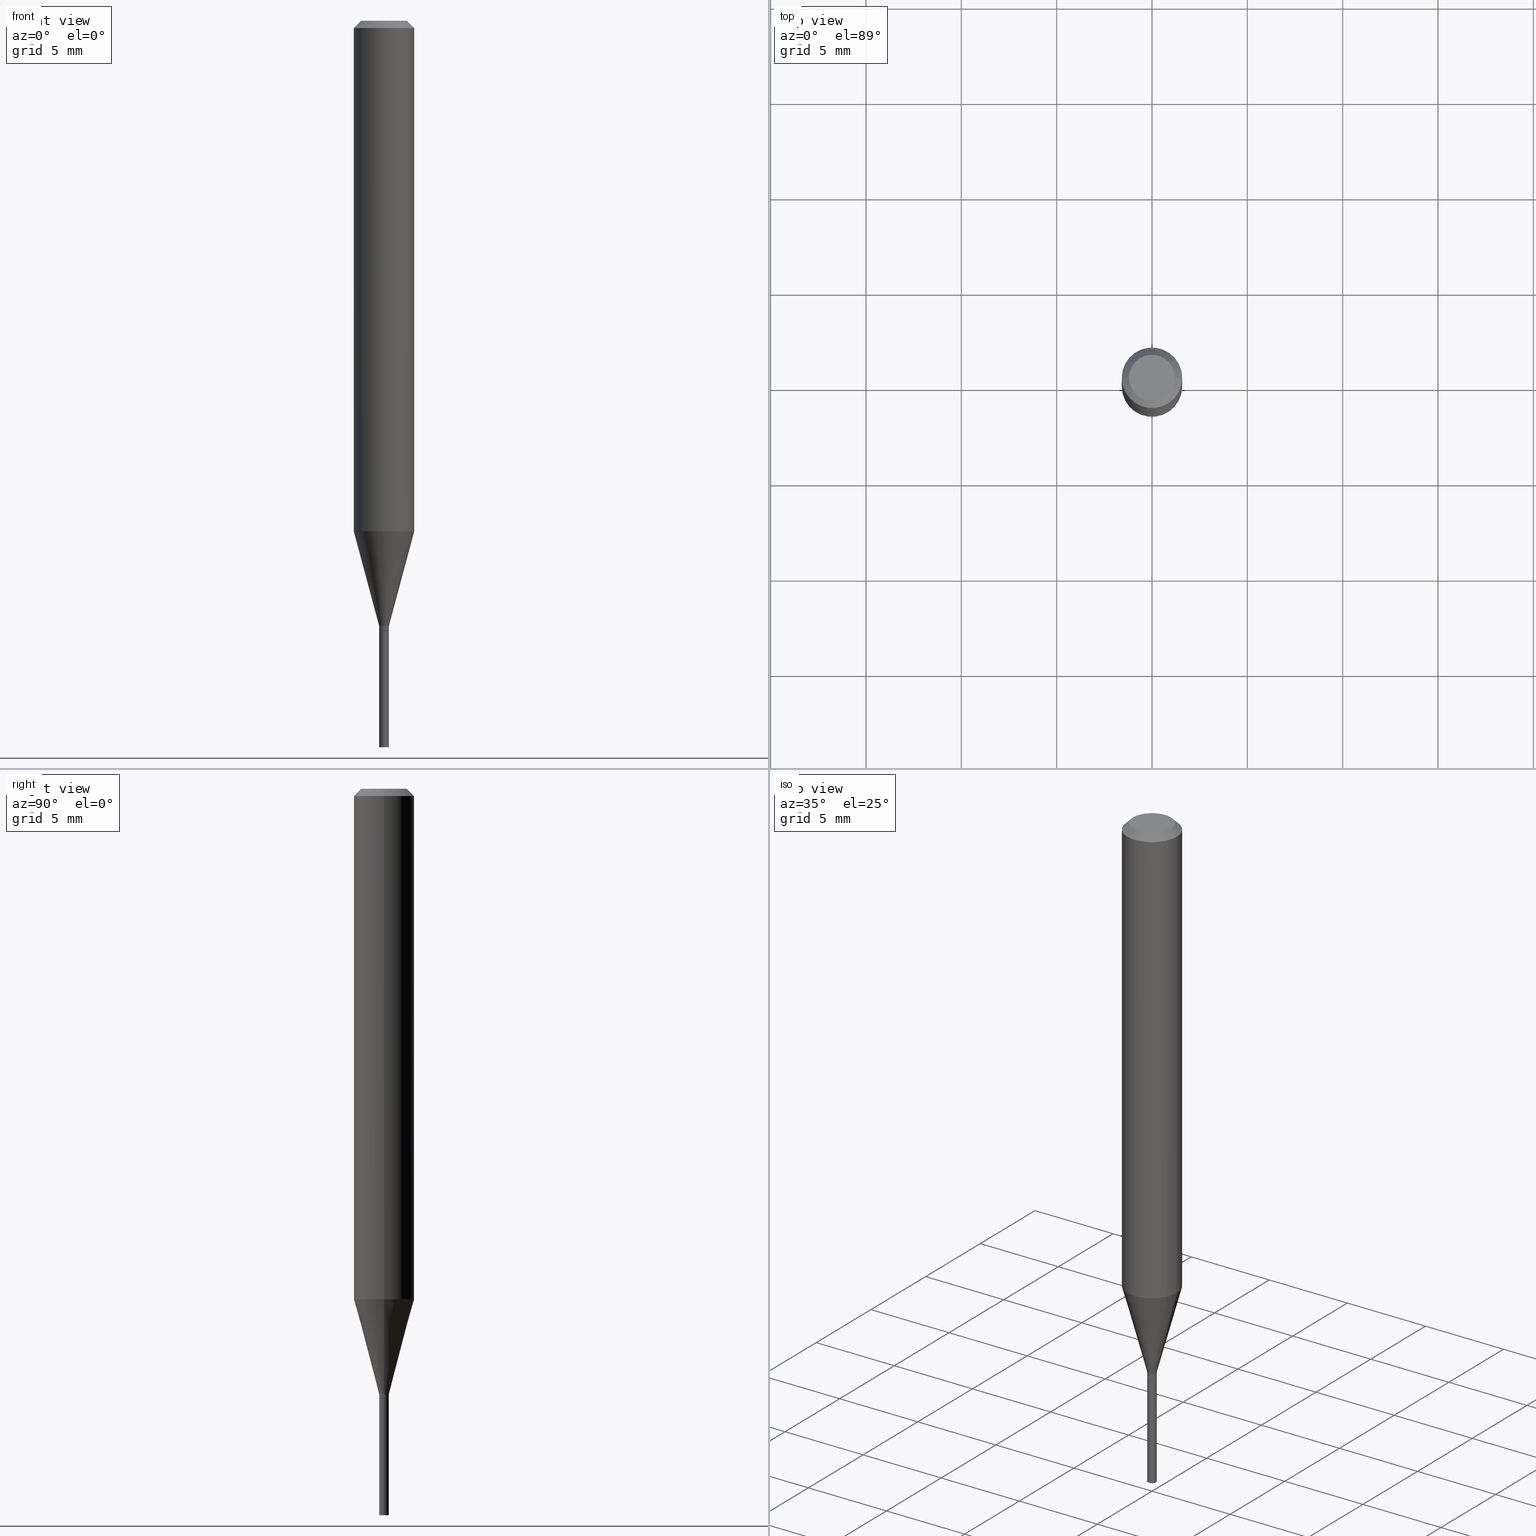
[diagram: canonical four-view strip — front | top / right | iso, engineering-drawing reading convention]
A machine part, canonical four-view strip (front | top / right | iso — engineering-drawing reading convention). The complete STEP part file that produces these views, byte-faithful:
ISO-10303-21;
HEADER;
FILE_DESCRIPTION (( 'STEP AP203' ),
    '1' );
FILE_NAME ('02695.STEP',
    '2024-03-18T21:26:36',
    ( '' ),
    ( '' ),
    'SwSTEP 2.0',
    'SolidWorks 2023',
    '' );
FILE_SCHEMA (( 'CONFIG_CONTROL_DESIGN' ));
ENDSEC;

DATA;
#1 = DIRECTION ( 'NONE',  ( 1.000000000000000000, -6.982962677686281699E-15, 0.000000000000000000 ) ) ;
#2 = ORIENTED_EDGE ( 'NONE', *, *, #234, .F. ) ;
#3 = CONICAL_SURFACE ( 'NONE', #269, 0.009999999999999923880, 0.2617993877991500740 ) ;
#4 = AXIS2_PLACEMENT_3D ( 'NONE', #5, #220, #301 ) ;
#5 = CARTESIAN_POINT ( 'NONE',  ( 3.056836007731421306E-29, -4.364351673553932471E-15, -1.250000000000000000 ) ) ;
#6 = DIRECTION ( 'NONE',  ( 0.000000000000000000, 0.000000000000000000, 1.000000000000000000 ) ) ;
#7 = EDGE_LOOP ( 'NONE', ( #407, #321, #293, #118 ) ) ;
#8 = CARTESIAN_POINT ( 'NONE',  ( -0.06250000000000000000, -3.236167211816206291E-15, -1.054067332602634188 ) ) ;
#9 = APPROVAL_ROLE ( '' ) ;
#10 = EDGE_LOOP ( 'NONE', ( #42, #317, #215, #186 ) ) ;
#11 = LINE ( 'NONE', #397, #440 ) ;
#12 = CALENDAR_DATE ( 2024, 18, 3 ) ;
#13 = APPLICATION_CONTEXT ( 'configuration controlled 3d designs of mechanical parts and assemblies' ) ;
#14 = DIRECTION ( 'NONE',  ( -2.438088387897960049E-29, 3.491481338843145188E-15, 1.000000000000000000 ) ) ;
#15 = AXIS2_PLACEMENT_3D ( 'NONE', #393, #296, #190 ) ;
#16 = ORIENTED_EDGE ( 'NONE', *, *, #209, .F. ) ;
#17 = COORDINATED_UNIVERSAL_TIME_OFFSET ( 5, 0, .BEHIND. ) ;
#18 = UNCERTAINTY_MEASURE_WITH_UNIT (LENGTH_MEASURE( 1.000000000000000082E-05 ), #41, 'distance_accuracy_value', 'NONE');
#19 = ORIENTED_EDGE ( 'NONE', *, *, #209, .T. ) ;
#20 = PERSON_AND_ORGANIZATION ( #200, #72 ) ;
#21 = CARTESIAN_POINT ( 'NONE',  ( 3.668203209277705088E-31, -5.237222008264718399E-17, -0.01499999999999999944 ) ) ;
#22 = FACE_OUTER_BOUND ( 'NONE', #398, .T. ) ;
#23 = CIRCLE ( 'NONE', #401, 0.04749999999999999362 ) ;
#24 = CARTESIAN_POINT ( 'NONE',  ( 0.06250000000000000000, -4.364351673553916694E-16, 3.047610484872459871E-30 ) ) ;
#25 = DIRECTION ( 'NONE',  ( -1.000000000000000000, 6.982962677686265922E-15, -4.876176775795935793E-29 ) ) ;
#26 = DIRECTION ( 'NONE',  ( -2.445468806185136597E-29, 3.491481338843145583E-15, 1.000000000000000000 ) ) ;
#27 = DIRECTION ( 'NONE',  ( -2.445468806185136597E-29, 3.491481338843145583E-15, 1.000000000000000000 ) ) ;
#28 = CIRCLE ( 'NONE', #197, 0.04749999999999999362 ) ;
#29 = DIRECTION ( 'NONE',  ( -1.000000000000000000, 6.982962677686265922E-15, -4.876176775795935793E-29 ) ) ;
#30 = APPROVAL_PERSON_ORGANIZATION ( #236, #149, #314 ) ;
#31 = DIRECTION ( 'NONE',  ( 1.000000000000000000, -6.982962677686265922E-15, 4.876176775795935793E-29 ) ) ;
#32 = ADVANCED_FACE ( 'NONE', ( #22 ), #66, .T. ) ;
#33 = CARTESIAN_POINT ( 'NONE',  ( -0.01000000000000000021, -4.747189974027531461E-15, -1.500000000000000222 ) ) ;
#34 = DIRECTION ( 'NONE',  ( -2.445468806185136597E-29, 3.491481338843145583E-15, 1.000000000000000000 ) ) ;
#35 = ADVANCED_FACE ( 'NONE', ( #139 ), #125, .T. ) ;
#36 = CC_DESIGN_APPROVAL ( #351, ( #409 ) ) ;
#37 = CARTESIAN_POINT ( 'NONE',  ( 2.577688781498515070E-29, -3.680256421666268512E-15, -1.054067332602634188 ) ) ;
#38 = CIRCLE ( 'NONE', #308, 0.009999999999999923880 ) ;
#39 = VECTOR ( 'NONE', #320, 39.37007874015748143 ) ;
#40 = EDGE_CURVE ( 'NONE', #156, #258, #128, .T. ) ;
#41 =( CONVERSION_BASED_UNIT ( 'INCH', #365 ) LENGTH_UNIT ( ) NAMED_UNIT ( #54 ) );
#42 = ORIENTED_EDGE ( 'NONE', *, *, #266, .T. ) ;
#43 = VERTEX_POINT ( 'NONE', #189 ) ;
#44 = CARTESIAN_POINT ( 'NONE',  ( -0.009499999999999999764, -4.329115699871044525E-15, -1.260000000000000231 ) ) ;
#45 = DIRECTION ( 'NONE',  ( -2.445468806185136597E-29, 3.491481338843145583E-15, 1.000000000000000000 ) ) ;
#46 = ORIENTED_EDGE ( 'NONE', *, *, #382, .T. ) ;
#47 = CARTESIAN_POINT ( 'NONE',  ( 3.668203209277705088E-31, -5.237222008264718399E-17, -0.01499999999999999944 ) ) ;
#48 = VECTOR ( 'NONE', #104, 39.37007874015748143 ) ;
#49 = VERTEX_POINT ( 'NONE', #8 ) ;
#50 = CARTESIAN_POINT ( 'NONE',  ( 3.668203209277704895E-29, -5.237222008264718177E-15, -1.500000000000000222 ) ) ;
#51 = FACE_OUTER_BOUND ( 'NONE', #201, .T. ) ;
#52 = EDGE_LOOP ( 'NONE', ( #458, #19, #136, #463 ) ) ;
#53 = DIRECTION ( 'NONE',  ( -2.445468806185136597E-29, 3.491481338843145583E-15, 1.000000000000000000 ) ) ;
#54 = DIMENSIONAL_EXPONENTS ( 1.000000000000000000, 0.000000000000000000, 0.000000000000000000, 0.000000000000000000, 0.000000000000000000, 0.000000000000000000, 0.000000000000000000 ) ;
#55 = PRODUCT_RELATED_PRODUCT_CATEGORY ( 'detail', '', ( #210 ) ) ;
#56 = PERSON_AND_ORGANIZATION ( #200, #72 ) ;
#57 = PERSON_AND_ORGANIZATION ( #200, #72 ) ;
#58 = EDGE_CURVE ( 'NONE', #95, #303, #436, .T. ) ;
#59 = ORIENTED_EDGE ( 'NONE', *, *, #454, .T. ) ;
#60 = CARTESIAN_POINT ( 'NONE',  ( -0.009999999999999923880, 7.105427357600947772E-17, -4.918935090254868612E-31 ) ) ;
#61 = CARTESIAN_POINT ( 'NONE',  ( -0.009999999999999923880, -4.293297399977923178E-15, -1.250000000000000000 ) ) ;
#62 = COORDINATED_UNIVERSAL_TIME_OFFSET ( 5, 0, .BEHIND. ) ;
#63 = EDGE_LOOP ( 'NONE', ( #389, #232 ) ) ;
#64 = CIRCLE ( 'NONE', #428, 0.01000000000000000021 ) ;
#65 = CARTESIAN_POINT ( 'NONE',  ( 0.000000000000000000, 0.000000000000000000, 0.000000000000000000 ) ) ;
#66 = CYLINDRICAL_SURFACE ( 'NONE', #203, 0.06250000000000000000 ) ;
#67 = PLANE ( 'NONE',  #227 ) ;
#68 = LOCAL_TIME ( 17, 26, 36.00000000000000000, #131 ) ;
#69 = CIRCLE ( 'NONE', #101, 0.01000000000000000021 ) ;
#70 = VECTOR ( 'NONE', #71, 39.37007874015748854 ) ;
#71 = DIRECTION ( 'NONE',  ( -0.7071067811865647812, 7.493145998870415691E-15, 0.7071067811865301422 ) ) ;
#72 = ORGANIZATION ( 'UNSPECIFIED', 'UNSPECIFIED', '' ) ;
#73 = ADVANCED_FACE ( 'NONE', ( #319 ), #450, .T. ) ;
#74 = ADVANCED_FACE ( 'NONE', ( #355 ), #280, .F. ) ;
#75 = LINE ( 'NONE', #419, #381 ) ;
#76 = AXIS2_PLACEMENT_3D ( 'NONE', #253, #180, #466 ) ;
#77 = ORIENTED_EDGE ( 'NONE', *, *, #171, .F. ) ;
#78 = EDGE_CURVE ( 'NONE', #95, #394, #134, .T. ) ;
#79 = DIRECTION ( 'NONE',  ( 1.000000000000000000, -6.982962677686239889E-15, 0.000000000000000000 ) ) ;
#80 = ORIENTED_EDGE ( 'NONE', *, *, #414, .F. ) ;
#81 = APPROVAL_DATE_TIME ( #343, #420 ) ;
#82 = ORIENTED_EDGE ( 'NONE', *, *, #430, .T. ) ;
#83 = LOCAL_TIME ( 17, 26, 36.00000000000000000, #441 ) ;
#84 = AXIS2_PLACEMENT_3D ( 'NONE', #345, #87, #338 ) ;
#85 = FACE_OUTER_BOUND ( 'NONE', #63, .T. ) ;
#86 = DIRECTION ( 'NONE',  ( 1.000000000000000000, -6.982962677686281699E-15, 0.000000000000000000 ) ) ;
#87 = DIRECTION ( 'NONE',  ( -2.445468806185136597E-29, 3.491481338843145583E-15, 1.000000000000000000 ) ) ;
#88 = DIRECTION ( 'NONE',  ( 1.000000000000000000, -6.982962677686235945E-15, 0.000000000000000000 ) ) ;
#89 = VECTOR ( 'NONE', #287, 39.37007874015748143 ) ;
#90 = AXIS2_PLACEMENT_3D ( 'NONE', #98, #26, #176 ) ;
#91 = APPLICATION_PROTOCOL_DEFINITION ( 'international standard', 'config_control_design', 1994, #207 ) ;
#92 = CARTESIAN_POINT ( 'NONE',  ( 0.000000000000000000, 0.000000000000000000, 0.000000000000000000 ) ) ;
#93 = APPROVAL_DATE_TIME ( #267, #351 ) ;
#94 = DIRECTION ( 'NONE',  ( 1.000000000000000000, -6.982962677686270655E-15, 0.000000000000000000 ) ) ;
#95 = VERTEX_POINT ( 'NONE', #356 ) ;
#96 = COORDINATED_UNIVERSAL_TIME_OFFSET ( 5, 0, .BEHIND. ) ;
#97 = CC_DESIGN_PERSON_AND_ORGANIZATION_ASSIGNMENT ( #375, #348, ( #438 ) ) ;
#98 = CARTESIAN_POINT ( 'NONE',  ( 0.000000000000000000, 0.000000000000000000, 0.000000000000000000 ) ) ;
#99 = ORIENTED_EDGE ( 'NONE', *, *, #123, .F. ) ;
#100 = DIRECTION ( 'NONE',  ( 1.000000000000000000, -6.982962677686266711E-15, 0.000000000000000000 ) ) ;
#101 = AXIS2_PLACEMENT_3D ( 'NONE', #330, #174, #323 ) ;
#102 = DIRECTION ( 'NONE',  ( -2.445468806185136597E-29, 3.491481338843145583E-15, 1.000000000000000000 ) ) ;
#103 = DIRECTION ( 'NONE',  ( 1.000000000000000000, -6.982962677686266711E-15, 0.000000000000000000 ) ) ;
#104 = DIRECTION ( 'NONE',  ( 0.7071067811865648922, -7.319954787623314421E-15, -0.7071067811865301422 ) ) ;
#105 = VECTOR ( 'NONE', #335, 39.37007874015748143 ) ;
#106 = EDGE_CURVE ( 'NONE', #276, #368, #38, .T. ) ;
#107 = DIRECTION ( 'NONE',  ( 1.000000000000000000, -6.982962677686270655E-15, 0.000000000000000000 ) ) ;
#108 = CC_DESIGN_DATE_AND_TIME_ASSIGNMENT ( #167, #311, ( #438 ) ) ;
#109 = DIRECTION ( 'NONE',  ( 1.000000000000000000, 0.000000000000000000, 0.000000000000000000 ) ) ;
#110 = DIRECTION ( 'NONE',  ( 1.000000000000000000, -6.982962677686235945E-15, 0.000000000000000000 ) ) ;
#111 = ADVANCED_FACE ( 'NONE', ( #147 ), #3, .T. ) ;
#112 = ORIENTED_EDGE ( 'NONE', *, *, #334, .T. ) ;
#113 = ORIENTED_EDGE ( 'NONE', *, *, #382, .F. ) ;
#114 = DIRECTION ( 'NONE',  ( -2.445468806185136597E-29, 3.491481338843145583E-15, 1.000000000000000000 ) ) ;
#115 = CARTESIAN_POINT ( 'NONE',  ( 0.009499999999999999764, -4.465604632380384411E-15, -1.260000000000000231 ) ) ;
#116 = CIRCLE ( 'NONE', #76, 0.009499999999999999764 ) ;
#117 = ORIENTED_EDGE ( 'NONE', *, *, #357, .T. ) ;
#118 = ORIENTED_EDGE ( 'NONE', *, *, #216, .F. ) ;
#119 = CARTESIAN_POINT ( 'NONE',  ( 0.06250000000000000000, -4.888073874380388472E-16, -0.01499999999999999944 ) ) ;
#120 = FACE_OUTER_BOUND ( 'NONE', #292, .T. ) ;
#121 = FACE_OUTER_BOUND ( 'NONE', #184, .T. ) ;
#122 = CYLINDRICAL_SURFACE ( 'NONE', #84, 0.009999999999999923880 ) ;
#123 = EDGE_CURVE ( 'NONE', #303, #243, #137, .T. ) ;
#124 = DIRECTION ( 'NONE',  ( -1.000000000000000000, 6.982962677686266711E-15, 0.000000000000000000 ) ) ;
#125 = CONICAL_SURFACE ( 'NONE', #245, 0.009499999999999999764, 0.7853981633974728149 ) ;
#126 = AXIS2_PLACEMENT_3D ( 'NONE', #313, #132, #94 ) ;
#127 = DIRECTION ( 'NONE',  ( 2.438088387897960049E-29, -3.491481338843145188E-15, -1.000000000000000000 ) ) ;
#128 = LINE ( 'NONE', #390, #212 ) ;
#129 = APPROVAL_ROLE ( '' ) ;
#130 = ORIENTED_EDGE ( 'NONE', *, *, #462, .F. ) ;
#131 = COORDINATED_UNIVERSAL_TIME_OFFSET ( 5, 0, .BEHIND. ) ;
#132 = DIRECTION ( 'NONE',  ( -2.445468806185136597E-29, 3.491481338843145583E-15, 1.000000000000000000 ) ) ;
#133 = CC_DESIGN_SECURITY_CLASSIFICATION ( #252, ( #409 ) ) ;
#134 = CIRCLE ( 'NONE', #427, 0.009999999999999923880 ) ;
#135 = AXIS2_PLACEMENT_3D ( 'NONE', #372, #233, #310 ) ;
#136 = ORIENTED_EDGE ( 'NONE', *, *, #457, .F. ) ;
#137 = LINE ( 'NONE', #24, #89 ) ;
#138 = CYLINDRICAL_SURFACE ( 'NONE', #15, 0.009999999999999923880 ) ;
#139 = FACE_OUTER_BOUND ( 'NONE', #306, .T. ) ;
#140 = DIRECTION ( 'NONE',  ( -2.445468806185136597E-29, 3.491481338843145583E-15, 1.000000000000000000 ) ) ;
#141 = LINE ( 'NONE', #60, #459 ) ;
#142 = CARTESIAN_POINT ( 'NONE',  ( 3.576687321579069994E-29, -5.368277968210015545E-15, -1.500000000000000222 ) ) ;
#143 = ORIENTED_EDGE ( 'NONE', *, *, #462, .T. ) ;
#144 = CARTESIAN_POINT ( 'NONE',  ( 3.080067961390180050E-29, -4.397520746272943406E-15, -1.259500000000000286 ) ) ;
#145 = EDGE_CURVE ( 'NONE', #206, #156, #69, .T. ) ;
#146 = CIRCLE ( 'NONE', #391, 0.009999999999999923880 ) ;
#147 = FACE_OUTER_BOUND ( 'NONE', #7, .T. ) ;
#148 = CARTESIAN_POINT ( 'NONE',  ( 0.06250000000000000000, -4.811533449433679005E-16, -0.01499999999999999944 ) ) ;
#149 = APPROVAL ( #172, 'UNSPECIFIED' ) ;
#150 = CARTESIAN_POINT ( 'NONE',  ( 0.000000000000000000, 0.000000000000000000, 0.000000000000000000 ) ) ;
#151 = EDGE_CURVE ( 'NONE', #43, #243, #316, .T. ) ;
#152 = VECTOR ( 'NONE', #279, 39.37007874015747433 ) ;
#153 = EDGE_LOOP ( 'NONE', ( #240, #198, #77, #99 ) ) ;
#154 = ORIENTED_EDGE ( 'NONE', *, *, #168, .F. ) ;
#155 = CARTESIAN_POINT ( 'NONE',  ( 0.009999999999999923880, -6.982962677686212723E-17, 4.876176775795898308E-31 ) ) ;
#156 = VERTEX_POINT ( 'NONE', #248 ) ;
#157 = LINE ( 'NONE', #432, #70 ) ;
#158 = AXIS2_PLACEMENT_3D ( 'NONE', #413, #277, #100 ) ;
#159 = LOCAL_TIME ( 17, 26, 36.00000000000000000, #96 ) ;
#160 = ORIENTED_EDGE ( 'NONE', *, *, #295, .F. ) ;
#161 = ORIENTED_EDGE ( 'NONE', *, *, #106, .T. ) ;
#162 = ADVANCED_FACE ( 'NONE', ( #384 ), #456, .T. ) ;
#163 = VERTEX_POINT ( 'NONE', #451 ) ;
#164 = CARTESIAN_POINT ( 'NONE',  ( 3.081290695793272291E-29, -4.399266486942364120E-15, -1.260000000000000231 ) ) ;
#165 = CARTESIAN_POINT ( 'NONE',  ( 6.982962677689347212E-17, 0.009999999999995600949, -1.260000000000000231 ) ) ;
#166 = AXIS2_PLACEMENT_3D ( 'NONE', #37, #290, #107 ) ;
#167 = DATE_AND_TIME ( #312, #244 ) ;
#168 = EDGE_CURVE ( 'NONE', #276, #394, #141, .T. ) ;
#169 = PERSON_AND_ORGANIZATION ( #200, #72 ) ;
#170 = CARTESIAN_POINT ( 'NONE',  ( 0.04749999999999999362, -4.035134999187590949E-16, -7.360803069154797719E-16 ) ) ;
#171 = EDGE_CURVE ( 'NONE', #243, #43, #429, .T. ) ;
#172 = APPROVAL_STATUS ( 'not_yet_approved' ) ;
#173 = EDGE_LOOP ( 'NONE', ( #416, #175 ) ) ;
#174 = DIRECTION ( 'NONE',  ( -2.445468806185136597E-29, 3.491481338843145583E-15, 1.000000000000000000 ) ) ;
#175 = ORIENTED_EDGE ( 'NONE', *, *, #145, .F. ) ;
#176 = DIRECTION ( 'NONE',  ( 1.000000000000000000, -6.982962677686265922E-15, 4.876176775795935793E-29 ) ) ;
#177 = DIRECTION ( 'NONE',  ( 1.000000000000000000, -6.982962677686239889E-15, 0.000000000000000000 ) ) ;
#178 = CIRCLE ( 'NONE', #166, 0.06250000000000000000 ) ;
#179 = PRODUCT_DEFINITION_SHAPE ( 'NONE', 'NONE',  #438 ) ;
#180 = DIRECTION ( 'NONE',  ( -2.445468806185136597E-29, 3.491481338843145583E-15, 1.000000000000000000 ) ) ;
#181 = DIRECTION ( 'NONE',  ( 1.000000000000000000, -6.982962677686267499E-15, 4.852736867747366768E-29 ) ) ;
#182 = CIRCLE ( 'NONE', #418, 0.01000000000000000021 ) ;
#183 = PLANE ( 'NONE',  #187 ) ;
#184 = EDGE_LOOP ( 'NONE', ( #154, #161, #226, #255 ) ) ;
#185 = FACE_OUTER_BOUND ( 'NONE', #52, .T. ) ;
#186 = ORIENTED_EDGE ( 'NONE', *, *, #40, .F. ) ;
#187 = AXIS2_PLACEMENT_3D ( 'NONE', #374, #14, #230 ) ;
#188 = CC_DESIGN_APPROVAL ( #149, ( #438 ) ) ;
#189 = CARTESIAN_POINT ( 'NONE',  ( -0.06250000000000000000, -1.422225111024395377E-15, -0.01499999999999999944 ) ) ;
#190 = DIRECTION ( 'NONE',  ( 1.000000000000000000, -6.982962677686265922E-15, 4.876176775795935232E-29 ) ) ;
#191 = APPLICATION_PROTOCOL_DEFINITION ( 'international standard', 'config_control_design', 1994, #13 ) ;
#192 = ORIENTED_EDGE ( 'NONE', *, *, #216, .T. ) ;
#193 = PLANE ( 'NONE',  #422 ) ;
#194 = CC_DESIGN_PERSON_AND_ORGANIZATION_ASSIGNMENT ( #239, #346, ( #210 ) ) ;
#195 = EDGE_CURVE ( 'NONE', #221, #423, #116, .T. ) ;
#196 = CLOSED_SHELL ( 'NONE', ( #318, #256, #449, #73, #278, #111, #32, #424, #74, #309, #35, #282 ) ) ;
#197 = AXIS2_PLACEMENT_3D ( 'NONE', #388, #34, #181 ) ;
#198 = ORIENTED_EDGE ( 'NONE', *, *, #295, .T. ) ;
#199 = PERSON_AND_ORGANIZATION_ROLE ( 'classification_officer' ) ;
#200 = PERSON ( 'UNSPECIFIED', 'UNSPECIFIED', 'UNSPECIFIED', ('UNSPECIFIED'), ('UNSPECIFIED'), ('UNSPECIFIED') ) ;
#201 = EDGE_LOOP ( 'NONE', ( #82, #46 ) ) ;
#202 = DIRECTION ( 'NONE',  ( -2.445468806185136597E-29, 3.491481338843145583E-15, 1.000000000000000000 ) ) ;
#203 = AXIS2_PLACEMENT_3D ( 'NONE', #92, #412, #448 ) ;
#204 = VECTOR ( 'NONE', #426, 39.37007874015748143 ) ;
#205 = DIRECTION ( 'NONE',  ( 1.000000000000000000, -6.982962677686266711E-15, 4.876176775795935793E-29 ) ) ;
#206 = VERTEX_POINT ( 'NONE', #33 ) ;
#207 = APPLICATION_CONTEXT ( 'configuration controlled 3d designs of mechanical parts and assemblies' ) ;
#208 = FACE_OUTER_BOUND ( 'NONE', #10, .T. ) ;
#209 = EDGE_CURVE ( 'NONE', #221, #276, #157, .T. ) ;
#210 = PRODUCT ( '02695', '02695', '', ( #304 ) ) ;
#211 = CARTESIAN_POINT ( 'NONE',  ( -0.01000000000000000021, 7.105427357601002007E-17, -4.918935090254906272E-31 ) ) ;
#212 = VECTOR ( 'NONE', #219, 39.37007874015748143 ) ;
#213 = AXIS2_PLACEMENT_3D ( 'NONE', #333, #114, #79 ) ;
#214 = CC_DESIGN_DATE_AND_TIME_ASSIGNMENT ( #241, #410, ( #252 ) ) ;
#215 = ORIENTED_EDGE ( 'NONE', *, *, #430, .F. ) ;
#216 = EDGE_CURVE ( 'NONE', #49, #303, #178, .T. ) ;
#217 = CONICAL_SURFACE ( 'NONE', #4, 0.009999999999999923880, 0.2617993877991500740 ) ;
#218 = DIRECTION ( 'NONE',  ( 1.000000000000000000, -6.982962677686267499E-15, 4.852736867747366768E-29 ) ) ;
#219 = DIRECTION ( 'NONE',  ( -2.445468806185136877E-29, 3.491481338843145188E-15, 1.000000000000000000 ) ) ;
#220 = DIRECTION ( 'NONE',  ( -2.445468806185136597E-29, 3.491481338843145583E-15, 1.000000000000000000 ) ) ;
#221 = VERTEX_POINT ( 'NONE', #44 ) ;
#222 = FACE_OUTER_BOUND ( 'NONE', #402, .T. ) ;
#223 =( NAMED_UNIT ( * ) SI_UNIT ( $, .STERADIAN. ) SOLID_ANGLE_UNIT ( ) );
#224 = ORIENTED_EDGE ( 'NONE', *, *, #151, .T. ) ;
#225 = CARTESIAN_POINT ( 'NONE',  ( 0.06250000000000000000, -4.116691589021660182E-15, -1.054067332602634188 ) ) ;
#226 = ORIENTED_EDGE ( 'NONE', *, *, #414, .T. ) ;
#227 = AXIS2_PLACEMENT_3D ( 'NONE', #142, #415, #31 ) ;
#228 = AXIS2_PLACEMENT_3D ( 'NONE', #231, #6, #109 ) ;
#229 = CARTESIAN_POINT ( 'NONE',  ( 0.009999999999999923880, -4.434181300330794192E-15, -1.250000000000000000 ) ) ;
#230 = DIRECTION ( 'NONE',  ( 1.000000000000000000, -6.982962677686265922E-15, 4.876176775795935793E-29 ) ) ;
#231 = CARTESIAN_POINT ( 'NONE',  ( 0.000000000000000000, 0.000000000000000000, 0.000000000000000000 ) ) ;
#232 = ORIENTED_EDGE ( 'NONE', *, *, #195, .F. ) ;
#233 = DIRECTION ( 'NONE',  ( -2.445468806185136597E-29, 3.491481338843145583E-15, 1.000000000000000000 ) ) ;
#234 = EDGE_CURVE ( 'NONE', #163, #43, #300, .T. ) ;
#235 = CIRCLE ( 'NONE', #126, 0.06250000000000000000 ) ;
#236 = PERSON_AND_ORGANIZATION ( #200, #72 ) ;
#237 = CARTESIAN_POINT ( 'NONE',  ( 3.081290695793272291E-29, -4.399266486942364120E-15, -1.260000000000000231 ) ) ;
#238 = CALENDAR_DATE ( 2024, 18, 3 ) ;
#239 = PERSON_AND_ORGANIZATION ( #200, #72 ) ;
#240 = ORIENTED_EDGE ( 'NONE', *, *, #273, .T. ) ;
#241 = DATE_AND_TIME ( #443, #68 ) ;
#242 = EDGE_CURVE ( 'NONE', #394, #95, #257, .T. ) ;
#243 = VERTEX_POINT ( 'NONE', #119 ) ;
#244 = LOCAL_TIME ( 17, 26, 36.00000000000000000, #17 ) ;
#245 = AXIS2_PLACEMENT_3D ( 'NONE', #237, #322, #1 ) ;
#246 = AXIS2_PLACEMENT_3D ( 'NONE', #50, #406, #88 ) ;
#247 = CARTESIAN_POINT ( 'NONE',  ( 3.316907271900976096E-16, 0.04749999999999999362, -5.338855170527906136E-16 ) ) ;
#248 = CARTESIAN_POINT ( 'NONE',  ( 0.01000000000000000021, -5.307051635041580686E-15, -1.500000000000000222 ) ) ;
#249 = CARTESIAN_POINT ( 'NONE',  ( 3.056836007731421306E-29, -4.364351673553932471E-15, -1.250000000000000000 ) ) ;
#250 = DIRECTION ( 'NONE',  ( -1.000000000000000000, 6.982962677686266711E-15, 0.000000000000000000 ) ) ;
#251 = CIRCLE ( 'NONE', #246, 0.01000000000000000021 ) ;
#252 = SECURITY_CLASSIFICATION ( '', '', #275 ) ;
#253 = CARTESIAN_POINT ( 'NONE',  ( 3.081290695793272291E-29, -4.399266486942364120E-15, -1.260000000000000231 ) ) ;
#254 = CARTESIAN_POINT ( 'NONE',  ( -0.01000000000000000021, -4.747189974027531461E-15, -1.260000000000000231 ) ) ;
#255 = ORIENTED_EDGE ( 'NONE', *, *, #242, .F. ) ;
#256 = ADVANCED_FACE ( 'NONE', ( #185 ), #340, .T. ) ;
#257 = CIRCLE ( 'NONE', #213, 0.009999999999999923880 ) ;
#258 = VERTEX_POINT ( 'NONE', #400 ) ;
#259 = EDGE_CURVE ( 'NONE', #423, #221, #354, .T. ) ;
#260 = CARTESIAN_POINT ( 'NONE',  ( -0.009999999999999923880, -4.326466472696934113E-15, -1.259500000000000286 ) ) ;
#261 =( NAMED_UNIT ( * ) PLANE_ANGLE_UNIT ( ) SI_UNIT ( $, .RADIAN. ) );
#262 = EDGE_LOOP ( 'NONE', ( #366, #143 ) ) ;
#263 = CARTESIAN_POINT ( 'NONE',  ( 0.009999999999999923880, -4.467350373049805126E-15, -1.259500000000000286 ) ) ;
#264 = DIRECTION ( 'NONE',  ( -2.445468806185136877E-29, 3.491481338843145188E-15, 1.000000000000000000 ) ) ;
#265 = ORIENTED_EDGE ( 'NONE', *, *, #392, .F. ) ;
#266 = EDGE_CURVE ( 'NONE', #156, #206, #251, .T. ) ;
#267 = DATE_AND_TIME ( #238, #159 ) ;
#268 = VERTEX_POINT ( 'NONE', #170 ) ;
#269 = AXIS2_PLACEMENT_3D ( 'NONE', #421, #102, #177 ) ;
#270 = PERSON_AND_ORGANIZATION ( #200, #72 ) ;
#271 = LOCAL_TIME ( 17, 26, 36.00000000000000000, #62 ) ;
#272 = ORIENTED_EDGE ( 'NONE', *, *, #145, .T. ) ;
#273 = EDGE_CURVE ( 'NONE', #303, #49, #235, .T. ) ;
#274 = DIRECTION ( 'NONE',  ( 0.2588190451025213501, 1.565188264969621968E-15, 0.9659258262890682012 ) ) ;
#275 = SECURITY_CLASSIFICATION_LEVEL ( 'unclassified' ) ;
#276 = VERTEX_POINT ( 'NONE', #260 ) ;
#277 = DIRECTION ( 'NONE',  ( -2.445468806185136597E-29, 3.491481338843145583E-15, 1.000000000000000000 ) ) ;
#278 = ADVANCED_FACE ( 'NONE', ( #222 ), #217, .T. ) ;
#279 = DIRECTION ( 'NONE',  ( -0.2588190451025213501, 5.211531920934551042E-15, 0.9659258262890682012 ) ) ;
#280 = PLANE ( 'NONE',  #281 ) ;
#281 = AXIS2_PLACEMENT_3D ( 'NONE', #247, #447, #29 ) ;
#282 = ADVANCED_FACE ( 'NONE', ( #121 ), #122, .T. ) ;
#283 = CONICAL_SURFACE ( 'NONE', #298, 0.06250000000000000000, 0.7853981633974729260 ) ;
#284 = ORIENTED_EDGE ( 'NONE', *, *, #357, .F. ) ;
#285 = DIRECTION ( 'NONE',  ( -2.445468806185136597E-29, 3.491481338843145583E-15, 1.000000000000000000 ) ) ;
#286 = LINE ( 'NONE', #211, #39 ) ;
#287 = DIRECTION ( 'NONE',  ( -2.445468806185136877E-29, 3.491481338843145188E-15, 1.000000000000000000 ) ) ;
#288 = MANIFOLD_SOLID_BREP ( 'Body-Move/Copy2[2]', #196 ) ;
#289 = APPROVAL_PERSON_ORGANIZATION ( #20, #420, #9 ) ;
#290 = DIRECTION ( 'NONE',  ( -2.445468806185136597E-29, 3.491481338843145583E-15, 1.000000000000000000 ) ) ;
#291 =( LENGTH_UNIT ( ) NAMED_UNIT ( * ) SI_UNIT ( $, .METRE. ) );
#292 = EDGE_LOOP ( 'NONE', ( #284, #265, #455, #224 ) ) ;
#293 = ORIENTED_EDGE ( 'NONE', *, *, #58, .T. ) ;
#294 = CARTESIAN_POINT ( 'NONE',  ( -0.06250000000000000000, 3.840629472727444916E-16, -0.01499999999999999944 ) ) ;
#295 = EDGE_CURVE ( 'NONE', #49, #43, #11, .T. ) ;
#296 = DIRECTION ( 'NONE',  ( -2.445468806185136597E-29, 3.491481338843145583E-15, 1.000000000000000000 ) ) ;
#297 = AXIS2_PLACEMENT_3D ( 'NONE', #65, #140, #205 ) ;
#298 = AXIS2_PLACEMENT_3D ( 'NONE', #399, #396, #124 ) ;
#299 = ORIENTED_EDGE ( 'NONE', *, *, #168, .T. ) ;
#300 = LINE ( 'NONE', #294, #105 ) ;
#301 = DIRECTION ( 'NONE',  ( 1.000000000000000000, -6.982962677686239889E-15, 0.000000000000000000 ) ) ;
#302 = CC_DESIGN_PERSON_AND_ORGANIZATION_ASSIGNMENT ( #56, #199, ( #252 ) ) ;
#303 = VERTEX_POINT ( 'NONE', #225 ) ;
#304 = MECHANICAL_CONTEXT ( 'NONE', #13, 'mechanical' ) ;
#305 = SHAPE_DEFINITION_REPRESENTATION ( #179, #331 ) ;
#306 = EDGE_LOOP ( 'NONE', ( #16, #444, #59, #437 ) ) ;
#307 = DIRECTION ( 'NONE',  ( -2.445468806185136597E-29, 3.491481338843145583E-15, 1.000000000000000000 ) ) ;
#308 = AXIS2_PLACEMENT_3D ( 'NONE', #144, #202, #417 ) ;
#309 = ADVANCED_FACE ( 'NONE', ( #85 ), #183, .F. ) ;
#310 = DIRECTION ( 'NONE',  ( 1.000000000000000000, -6.982962677686281699E-15, 0.000000000000000000 ) ) ;
#311 = DATE_TIME_ROLE ( 'creation_date' ) ;
#312 = CALENDAR_DATE ( 2024, 18, 3 ) ;
#313 = CARTESIAN_POINT ( 'NONE',  ( 2.577688781498515070E-29, -3.680256421666268512E-15, -1.054067332602634188 ) ) ;
#314 = APPROVAL_ROLE ( '' ) ;
#315 = DIRECTION ( 'NONE',  ( -2.445468806185136597E-29, 3.491481338843145583E-15, 1.000000000000000000 ) ) ;
#316 = CIRCLE ( 'NONE', #371, 0.06250000000000000000 ) ;
#317 = ORIENTED_EDGE ( 'NONE', *, *, #350, .T. ) ;
#318 = ADVANCED_FACE ( 'NONE', ( #370 ), #138, .T. ) ;
#319 = FACE_OUTER_BOUND ( 'NONE', #153, .T. ) ;
#320 = DIRECTION ( 'NONE',  ( -2.445468806185136877E-29, 3.491481338843145188E-15, 1.000000000000000000 ) ) ;
#321 = ORIENTED_EDGE ( 'NONE', *, *, #242, .T. ) ;
#322 = DIRECTION ( 'NONE',  ( -2.445468806185136597E-29, 3.491481338843145583E-15, 1.000000000000000000 ) ) ;
#323 = DIRECTION ( 'NONE',  ( 1.000000000000000000, -6.982962677686235945E-15, 0.000000000000000000 ) ) ;
#324 = ADVANCED_FACE ( 'NONE', ( #51 ), #193, .F. ) ;
#325 = LINE ( 'NONE', #148, #48 ) ;
#326 = DIRECTION ( 'NONE',  ( 1.000000000000000000, -6.982962677686289588E-15, 0.000000000000000000 ) ) ;
#327 = CLOSED_SHELL ( 'NONE', ( #328, #361, #162, #324 ) ) ;
#328 = ADVANCED_FACE ( 'NONE', ( #208 ), #358, .T. ) ;
#329 = AXIS2_PLACEMENT_3D ( 'NONE', #150, #380, #411 ) ;
#330 = CARTESIAN_POINT ( 'NONE',  ( 3.668203209277704895E-29, -5.237222008264718177E-15, -1.500000000000000222 ) ) ;
#331 = ADVANCED_BREP_SHAPE_REPRESENTATION ( '02695', ( #435, #288, #228 ), #408 ) ;
#332 = ORIENTED_EDGE ( 'NONE', *, *, #78, .F. ) ;
#333 = CARTESIAN_POINT ( 'NONE',  ( 3.056836007731421306E-29, -4.364351673553932471E-15, -1.250000000000000000 ) ) ;
#334 = EDGE_CURVE ( 'NONE', #394, #49, #359, .T. ) ;
#335 = DIRECTION ( 'NONE',  ( -0.7071067811865648922, 2.468850131082438893E-15, -0.7071067811865301422 ) ) ;
#336 = CARTESIAN_POINT ( 'NONE',  ( 1.800061429408993440E-44, -2.570010655485341702E-30, -7.360803069154823357E-16 ) ) ;
#337 = ORIENTED_EDGE ( 'NONE', *, *, #58, .F. ) ;
#338 = DIRECTION ( 'NONE',  ( 1.000000000000000000, -6.982962677686265922E-15, 4.876176775795935232E-29 ) ) ;
#339 = ORIENTED_EDGE ( 'NONE', *, *, #171, .T. ) ;
#340 = CONICAL_SURFACE ( 'NONE', #445, 0.009499999999999999764, 0.7853981633974728149 ) ;
#341 = ORIENTED_EDGE ( 'NONE', *, *, #151, .F. ) ;
#342 = DIRECTION ( 'NONE',  ( 2.445468806185136597E-29, -3.491481338843145583E-15, -1.000000000000000000 ) ) ;
#343 = DATE_AND_TIME ( #12, #83 ) ;
#344 = CARTESIAN_POINT ( 'NONE',  ( 3.081290695793272291E-29, -4.399266486942364120E-15, -1.260000000000000231 ) ) ;
#345 = CARTESIAN_POINT ( 'NONE',  ( 0.000000000000000000, 0.000000000000000000, 0.000000000000000000 ) ) ;
#346 = PERSON_AND_ORGANIZATION_ROLE ( 'design_owner' ) ;
#347 = AXIS2_PLACEMENT_3D ( 'NONE', #47, #342, #250 ) ;
#348 = PERSON_AND_ORGANIZATION_ROLE ( 'creator' ) ;
#349 = ORIENTED_EDGE ( 'NONE', *, *, #40, .T. ) ;
#350 = EDGE_CURVE ( 'NONE', #206, #461, #286, .T. ) ;
#351 = APPROVAL ( #442, 'UNSPECIFIED' ) ;
#352 = EDGE_LOOP ( 'NONE', ( #383, #299, #332, #80 ) ) ;
#353 = DIRECTION ( 'NONE',  ( -2.445468806185136877E-29, 3.491481338843145188E-15, 1.000000000000000000 ) ) ;
#354 = CIRCLE ( 'NONE', #135, 0.009499999999999999764 ) ;
#355 = FACE_OUTER_BOUND ( 'NONE', #262, .T. ) ;
#356 = CARTESIAN_POINT ( 'NONE',  ( 0.009999999999999923880, -4.434181300330794192E-15, -1.250000000000000000 ) ) ;
#357 = EDGE_CURVE ( 'NONE', #268, #243, #325, .T. ) ;
#358 = CYLINDRICAL_SURFACE ( 'NONE', #90, 0.01000000000000000021 ) ;
#359 = LINE ( 'NONE', #61, #152 ) ;
#360 = DIRECTION ( 'NONE',  ( 0.7071067811865647812, -2.468850131082438104E-15, 0.7071067811865301422 ) ) ;
#361 = ADVANCED_FACE ( 'NONE', ( #452 ), #67, .F. ) ;
#362 = CONICAL_SURFACE ( 'NONE', #347, 0.06250000000000000000, 0.7853981633974729260 ) ;
#363 = LINE ( 'NONE', #155, #204 ) ;
#364 = DESIGN_CONTEXT ( 'detailed design', #207, 'design' ) ;
#365 = LENGTH_MEASURE_WITH_UNIT ( LENGTH_MEASURE( 0.02539999999999999897 ), #291 );
#366 = ORIENTED_EDGE ( 'NONE', *, *, #392, .T. ) ;
#367 = ORIENTED_EDGE ( 'NONE', *, *, #123, .T. ) ;
#368 = VERTEX_POINT ( 'NONE', #263 ) ;
#369 = FACE_OUTER_BOUND ( 'NONE', #431, .T. ) ;
#370 = FACE_OUTER_BOUND ( 'NONE', #352, .T. ) ;
#371 = AXIS2_PLACEMENT_3D ( 'NONE', #21, #285, #103 ) ;
#372 = CARTESIAN_POINT ( 'NONE',  ( 3.081290695793272291E-29, -4.399266486942364120E-15, -1.260000000000000231 ) ) ;
#373 = APPROVAL_STATUS ( 'not_yet_approved' ) ;
#374 = CARTESIAN_POINT ( 'NONE',  ( 3.081290695793272291E-29, -4.399266486942364120E-15, -1.260000000000000231 ) ) ;
#375 = PERSON_AND_ORGANIZATION ( #200, #72 ) ;
#376 = PERSON_AND_ORGANIZATION_ROLE ( 'design_supplier' ) ;
#377 = CC_DESIGN_PERSON_AND_ORGANIZATION_ASSIGNMENT ( #57, #376, ( #409 ) ) ;
#378 = EDGE_LOOP ( 'NONE', ( #434, #272, #349, #113 ) ) ;
#379 = CALENDAR_DATE ( 2024, 18, 3 ) ;
#380 = DIRECTION ( 'NONE',  ( -2.445468806185136597E-29, 3.491481338843145583E-15, 1.000000000000000000 ) ) ;
#381 = VECTOR ( 'NONE', #360, 39.37007874015748854 ) ;
#382 = EDGE_CURVE ( 'NONE', #461, #258, #64, .T. ) ;
#383 = ORIENTED_EDGE ( 'NONE', *, *, #457, .T. ) ;
#384 = FACE_OUTER_BOUND ( 'NONE', #378, .T. ) ;
#385 = APPROVAL_PERSON_ORGANIZATION ( #169, #351, #129 ) ;
#386 = DIRECTION ( 'NONE',  ( 1.000000000000000000, -6.982962677686239889E-15, 0.000000000000000000 ) ) ;
#387 = CARTESIAN_POINT ( 'NONE',  ( 3.080067961390180050E-29, -4.397520746272943406E-15, -1.259500000000000286 ) ) ;
#388 = CARTESIAN_POINT ( 'NONE',  ( 1.800061429408993440E-44, -2.570010655485341702E-30, -7.360803069154823357E-16 ) ) ;
#389 = ORIENTED_EDGE ( 'NONE', *, *, #259, .F. ) ;
#390 = CARTESIAN_POINT ( 'NONE',  ( 0.01000000000000000021, -6.982962677686265724E-17, 4.876176775795935968E-31 ) ) ;
#391 = AXIS2_PLACEMENT_3D ( 'NONE', #387, #27, #326 ) ;
#392 = EDGE_CURVE ( 'NONE', #163, #268, #23, .T. ) ;
#393 = CARTESIAN_POINT ( 'NONE',  ( 0.000000000000000000, 0.000000000000000000, 0.000000000000000000 ) ) ;
#394 = VERTEX_POINT ( 'NONE', #439 ) ;
#395 = CC_DESIGN_PERSON_AND_ORGANIZATION_ASSIGNMENT ( #270, #405, ( #409 ) ) ;
#396 = DIRECTION ( 'NONE',  ( 2.445468806185136597E-29, -3.491481338843145583E-15, -1.000000000000000000 ) ) ;
#397 = CARTESIAN_POINT ( 'NONE',  ( -0.06250000000000000000, 4.440892098500626162E-16, -3.074334431409316114E-30 ) ) ;
#398 = EDGE_LOOP ( 'NONE', ( #160, #192, #367, #341 ) ) ;
#399 = CARTESIAN_POINT ( 'NONE',  ( 3.668203209277705088E-31, -5.237222008264718399E-17, -0.01499999999999999944 ) ) ;
#400 = CARTESIAN_POINT ( 'NONE',  ( 0.01000000000000000021, -4.469096113719226630E-15, -1.260000000000000231 ) ) ;
#401 = AXIS2_PLACEMENT_3D ( 'NONE', #336, #464, #218 ) ;
#402 = EDGE_LOOP ( 'NONE', ( #465, #112, #425, #337 ) ) ;
#403 = CARTESIAN_POINT ( 'NONE',  ( 3.081290695793272291E-29, -4.399266486942364120E-15, -1.260000000000000231 ) ) ;
#404 = APPROVAL_DATE_TIME ( #446, #149 ) ;
#405 = PERSON_AND_ORGANIZATION_ROLE ( 'creator' ) ;
#406 = DIRECTION ( 'NONE',  ( -2.445468806185136597E-29, 3.491481338843145583E-15, 1.000000000000000000 ) ) ;
#407 = ORIENTED_EDGE ( 'NONE', *, *, #334, .F. ) ;
#408 =( GEOMETRIC_REPRESENTATION_CONTEXT ( 3 ) GLOBAL_UNCERTAINTY_ASSIGNED_CONTEXT ( ( #18 ) ) GLOBAL_UNIT_ASSIGNED_CONTEXT ( ( #41, #261, #223 ) ) REPRESENTATION_CONTEXT ( 'NONE', 'WORKASPACE' ) );
#409 = PRODUCT_DEFINITION_FORMATION_WITH_SPECIFIED_SOURCE ( 'ANY', '', #210, .NOT_KNOWN. ) ;
#410 = DATE_TIME_ROLE ( 'classification_date' ) ;
#411 = DIRECTION ( 'NONE',  ( 1.000000000000000000, -6.982962677686265922E-15, 4.876176775795935793E-29 ) ) ;
#412 = DIRECTION ( 'NONE',  ( -2.445468806185136597E-29, 3.491481338843145583E-15, 1.000000000000000000 ) ) ;
#413 = CARTESIAN_POINT ( 'NONE',  ( 3.668203209277705088E-31, -5.237222008264718399E-17, -0.01499999999999999944 ) ) ;
#414 = EDGE_CURVE ( 'NONE', #368, #95, #363, .T. ) ;
#415 = DIRECTION ( 'NONE',  ( -2.438088387897960049E-29, 3.491481338843145188E-15, 1.000000000000000000 ) ) ;
#416 = ORIENTED_EDGE ( 'NONE', *, *, #266, .F. ) ;
#417 = DIRECTION ( 'NONE',  ( 1.000000000000000000, -6.982962677686289588E-15, 0.000000000000000000 ) ) ;
#418 = AXIS2_PLACEMENT_3D ( 'NONE', #344, #307, #433 ) ;
#419 = CARTESIAN_POINT ( 'NONE',  ( 0.009499999999999999764, -4.465604632380384411E-15, -1.260000000000000231 ) ) ;
#420 = APPROVAL ( #373, 'UNSPECIFIED' ) ;
#421 = CARTESIAN_POINT ( 'NONE',  ( 3.056836007731421306E-29, -4.364351673553932471E-15, -1.250000000000000000 ) ) ;
#422 = AXIS2_PLACEMENT_3D ( 'NONE', #165, #127, #25 ) ;
#423 = VERTEX_POINT ( 'NONE', #115 ) ;
#424 = ADVANCED_FACE ( 'NONE', ( #120 ), #283, .T. ) ;
#425 = ORIENTED_EDGE ( 'NONE', *, *, #273, .F. ) ;
#426 = DIRECTION ( 'NONE',  ( -2.445468806185136877E-29, 3.491481338843145188E-15, 1.000000000000000000 ) ) ;
#427 = AXIS2_PLACEMENT_3D ( 'NONE', #249, #315, #386 ) ;
#428 = AXIS2_PLACEMENT_3D ( 'NONE', #164, #45, #110 ) ;
#429 = CIRCLE ( 'NONE', #158, 0.06250000000000000000 ) ;
#430 = EDGE_CURVE ( 'NONE', #258, #461, #182, .T. ) ;
#431 = EDGE_LOOP ( 'NONE', ( #130, #117, #339, #2 ) ) ;
#432 = CARTESIAN_POINT ( 'NONE',  ( -0.009499999999999999764, -4.331764927045154937E-15, -1.260000000000000231 ) ) ;
#433 = DIRECTION ( 'NONE',  ( 1.000000000000000000, -6.982962677686235945E-15, 0.000000000000000000 ) ) ;
#434 = ORIENTED_EDGE ( 'NONE', *, *, #350, .F. ) ;
#435 = MANIFOLD_SOLID_BREP ( 'Body-Move/Copy2[1]', #327 ) ;
#436 = LINE ( 'NONE', #229, #453 ) ;
#437 = ORIENTED_EDGE ( 'NONE', *, *, #106, .F. ) ;
#438 = PRODUCT_DEFINITION ( 'UNKNOWN', '', #409, #364 ) ;
#439 = CARTESIAN_POINT ( 'NONE',  ( -0.009999999999999923880, -3.764732305897064537E-15, -1.250000000000000000 ) ) ;
#440 = VECTOR ( 'NONE', #264, 39.37007874015748143 ) ;
#441 = COORDINATED_UNIVERSAL_TIME_OFFSET ( 5, 0, .BEHIND. ) ;
#442 = APPROVAL_STATUS ( 'not_yet_approved' ) ;
#443 = CALENDAR_DATE ( 2024, 18, 3 ) ;
#444 = ORIENTED_EDGE ( 'NONE', *, *, #195, .T. ) ;
#445 = AXIS2_PLACEMENT_3D ( 'NONE', #403, #53, #86 ) ;
#446 = DATE_AND_TIME ( #379, #271 ) ;
#447 = DIRECTION ( 'NONE',  ( 2.438088387897960049E-29, -3.491481338843145188E-15, -1.000000000000000000 ) ) ;
#448 = DIRECTION ( 'NONE',  ( 1.000000000000000000, -6.982962677686266711E-15, 4.876176775795935793E-29 ) ) ;
#449 = ADVANCED_FACE ( 'NONE', ( #369 ), #362, .T. ) ;
#450 = CYLINDRICAL_SURFACE ( 'NONE', #297, 0.06250000000000000000 ) ;
#451 = CARTESIAN_POINT ( 'NONE',  ( -0.04749999999999999362, 3.578768372314198180E-16, -7.360803069154847023E-16 ) ) ;
#452 = FACE_OUTER_BOUND ( 'NONE', #173, .T. ) ;
#453 = VECTOR ( 'NONE', #274, 39.37007874015747433 ) ;
#454 = EDGE_CURVE ( 'NONE', #423, #368, #75, .T. ) ;
#455 = ORIENTED_EDGE ( 'NONE', *, *, #234, .T. ) ;
#456 = CYLINDRICAL_SURFACE ( 'NONE', #329, 0.01000000000000000021 ) ;
#457 = EDGE_CURVE ( 'NONE', #368, #276, #146, .T. ) ;
#458 = ORIENTED_EDGE ( 'NONE', *, *, #259, .T. ) ;
#459 = VECTOR ( 'NONE', #353, 39.37007874015748143 ) ;
#460 = CC_DESIGN_APPROVAL ( #420, ( #252 ) ) ;
#461 = VERTEX_POINT ( 'NONE', #254 ) ;
#462 = EDGE_CURVE ( 'NONE', #268, #163, #28, .T. ) ;
#463 = ORIENTED_EDGE ( 'NONE', *, *, #454, .F. ) ;
#464 = DIRECTION ( 'NONE',  ( -2.445468806185136597E-29, 3.491481338843145583E-15, 1.000000000000000000 ) ) ;
#465 = ORIENTED_EDGE ( 'NONE', *, *, #78, .T. ) ;
#466 = DIRECTION ( 'NONE',  ( 1.000000000000000000, -6.982962677686281699E-15, 0.000000000000000000 ) ) ;
ENDSEC;
END-ISO-10303-21;
